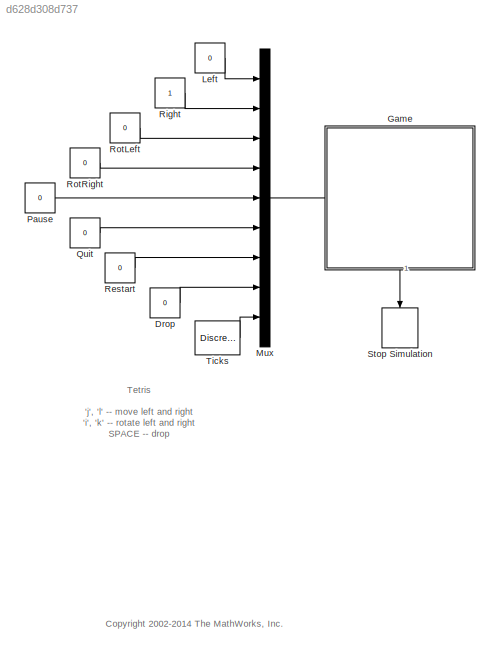
MODEL slx_d628d308d737
KIND model
CONFIG AbsTol = auto
CONFIG EnableMultiTasking = on
CONFIG FixedStep = 1
CONFIG MaxStep = auto
CONFIG MinStep = auto
CONFIG RelTol = 1e-3
CONFIG SampleTimeConstraint = Unconstrained
CONFIG Solver = ode5
CONFIG SolverName = ode5
CONFIG StartTime = 0.0
CONFIG StopTime = inf
BLOCK [Constant] Drop
  Value = 0
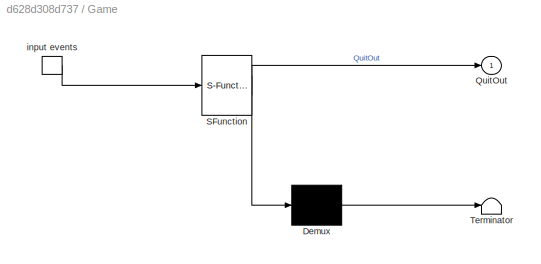
BLOCK [SubSystem] Game
  ErrorFcn = Stateflow.Translate.translate
  PermitHierarchicalResolution = ExplicitOnly
  Ports = [0, 1, 0, 1]
  RequestExecContextInheritance = off
  SFBlockType = Chart
  TreatAsAtomicUnit = on
  Variant = off
BLOCK [Demux] Game/ Demux 
  Outputs = 1
  Ports = [1, 1]
BLOCK [S-Function] Game/ SFunction 
  EnableBusSupport = off
  FunctionName = sf_sfun
  PortCounts = [1 2]
  Ports = [1, 2]
  SFcnIsStateOwnerBlock = off
  SFunctionDeploymentMode = off
  Tag = Stateflow S-Function sf_tetris 1
BLOCK [Terminator] Game/ Terminator 
BLOCK [TriggerPort] Game/ input events 
  Ports = [0, 1]
  ShowOutputPort = on
  TriggerType = either
  VariantControl = Variant
BLOCK [Outport] Game/QuitOut
  IconDisplay = Port number
BLOCK [Constant] Left
  AttributesFormatString = \n\n
  Value = 0
BLOCK [Mux] Mux
  DisplayOption = bar
  Inputs = 9
  Ports = [9, 1]
BLOCK [Constant] Pause
  Value = 0
BLOCK [Constant] Quit
  Value = 0
BLOCK [Constant] Restart
  Value = 0
BLOCK [Constant] Right
BLOCK [Constant] RotLeft
  Value = 0
BLOCK [Constant] RotRight
  Value = 0
BLOCK [Stop] Stop Simulation
BLOCK [DiscretePulseGenerator] Ticks
  Ports = [0, 1]
  PulseType = Time based
  PulseWidth = 50
ANNOTATION (root): <copyright redacted>
ANNOTATION (root): Tetris 'j', 'l' -- move left and right 'i', 'k' -- rotate left and right SPACE -- drop 'p' -- pause 'q' -- quit Edit sf_tetris_gui.m to change key bindings. WARNING: Game window must have focus to play.
LINE Drop:1 -> Mux:8
LINE Game:1 -> Stop Simulation:1
LINE Left:1 -> Mux:1
LINE Mux:1 -> Game:trigger
LINE Pause:1 -> Mux:5
LINE Quit:1 -> Mux:6
LINE Restart:1 -> Mux:7
LINE Right:1 -> Mux:2
LINE RotLeft:1 -> Mux:3
LINE RotRight:1 -> Mux:4
LINE Ticks:1 -> Mux:9
CHART Game states=9 transitions=123
  STATE_LABEL 'P'
  STATE_LABEL 'A\nentry: ml.sf_tetris_gui("paint",level,score);\nexit: t = ml.cputime();'
  STATE_LABEL "Q\nentry:\n  ml.sf_tetris_gui('gameover');\n  QuitOut;"
  STATE_LABEL 'num = clear_rows()'
  STATE_LABEL '{ y=gridH;\n  num = 0; }'
  STATE_LABEL '{ x++; }'
  STATE_LABEL '[get(x,y)]'
  STATE_LABEL '[y>=1]'
  STATE_LABEL '{x=1;}'
  STATE_LABEL '[x<=gridW]'
  STATE_LABEL '{ y--; }'
  STATE_LABEL '{ num++; }'
  STATE_LABEL '[num!=0]'
  STATE_LABEL '{ x=1; }'
  STATE_LABEL '[x<=gridW]'
  STATE_LABEL '{ x++; }'
  STATE_LABEL '{ set(x,y+num,get(x,y)); }'
  STATE_LABEL 'e = set(x,y,c)'
  STATE_LABEL '{ e = 1; }'
  STATE_LABEL '[x>=1 && x<=gridW]'
  STATE_LABEL '[y>=1 && y<=gridH]'
  STATE_LABEL '{ grid[x][y] = c;\n  ml.sf_tetris_gui("set",y,x,c);\n e = 0;\n}'
  STATE_LABEL 'e = show(x,y,s,c)'
  STATE_LABEL '{ dx = -1;\n  dy = -1;\n  i = 0;\n  e = 0; }'
  STATE_LABEL '[i<16]'
  STATE_LABEL '[(s>>i) & 0x1]'
  STATE_LABEL '{ e+=set(x+dx,y+dy,c); }'
  STATE_LABEL '[dx==2]'
  STATE_LABEL '{dx++;}'
  STATE_LABEL '{dx=-1; dy++;}'
  STATE_LABEL '{ i++; }'
  STATE_LABEL 'r = okay(x,y,s)'
  STATE_LABEL '{ i = 0;\n  dx = -1;\n  dy = -1; }'
  STATE_LABEL '[i<16]'
  STATE_LABEL '[(s>>i) & 0x1]'
  STATE_LABEL '{ r = (get(x+dx,y+dy)==0); }'
  STATE_LABEL '[r==0]'
  STATE_LABEL '[dx==2]'
  STATE_LABEL '{dx=-1; dy++;}'
  STATE_LABEL '{dx++;}'
